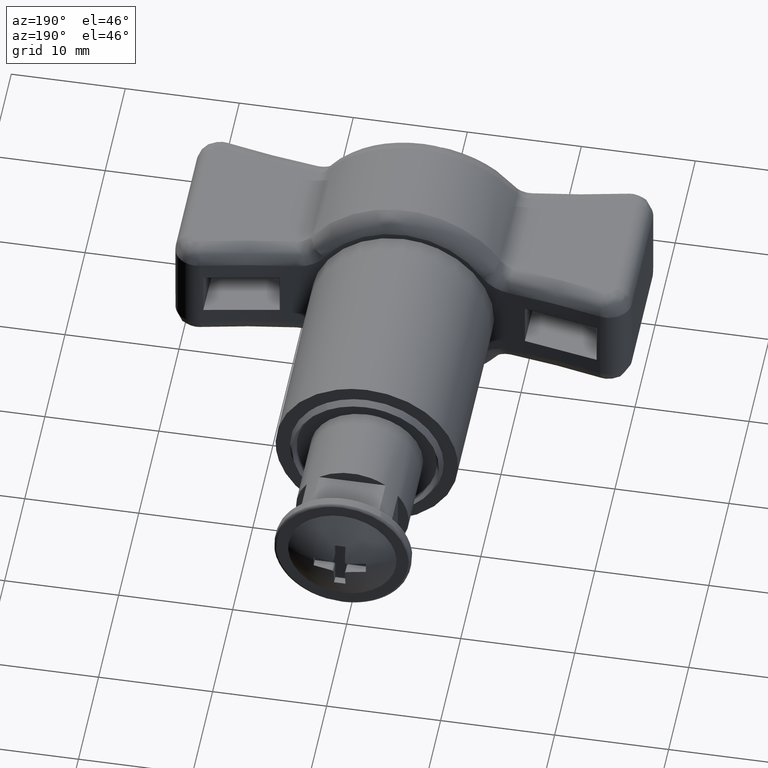
[diagram: clean part render]
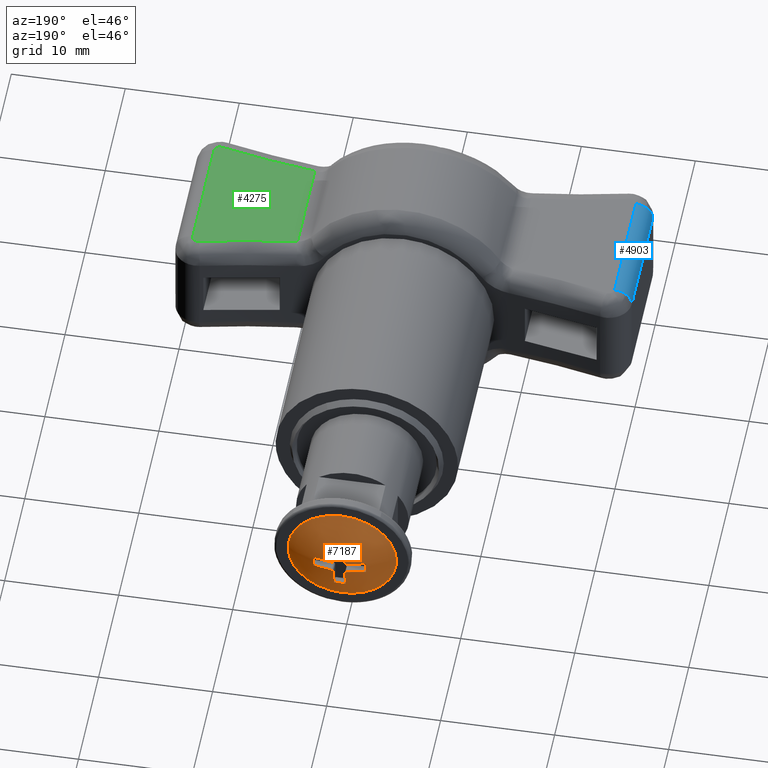
[diagram: same view with three faces highlighted in distinct colors, each labeled with its STEP entity id]
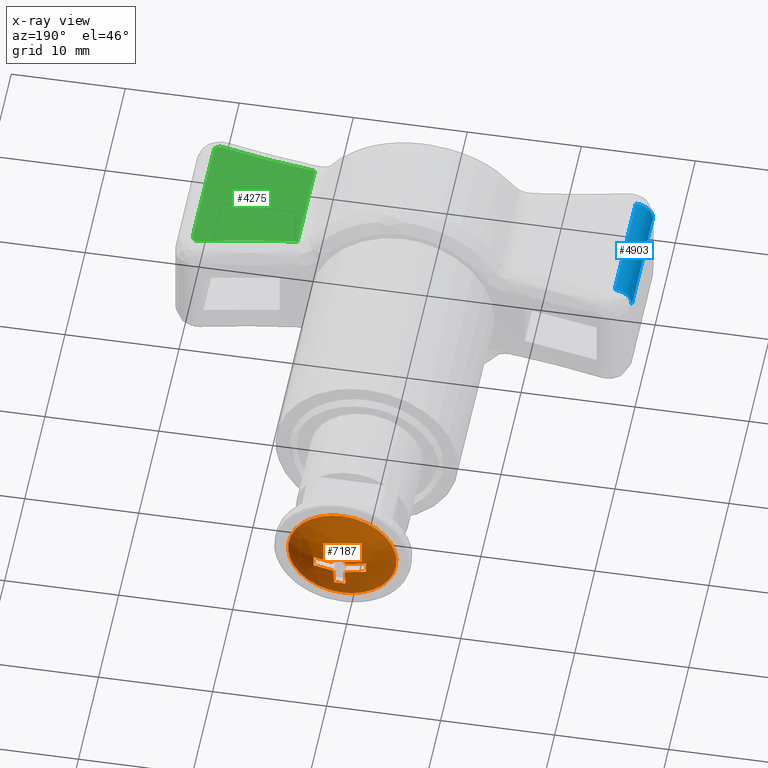
[diagram: x-ray of the same camera — body ghosted, the three highlighted faces saturated]
A machine part, auxiliary view with three faces highlighted in distinct colors.
The next image is the same camera in x-ray (body ghosted, the three faces saturated) — at least one of them is partly hidden behind the body in this view.
Their STEP definitions:

[orange] entity #7187 — the highlighted face is a freeform B-spline surface patch.
#6545=CARTESIAN_POINT('',(0.700000033248273,13.752729460377759,0.500000023748697));
#6546=VERTEX_POINT('',#6545);
#6553=CARTESIAN_POINT('',(0.500000023748669,13.752729460377781,0.700000033248202));
#6554=VERTEX_POINT('',#6553);
#6560=CARTESIAN_POINT('',(0.700000033248276,13.752729460377770,0.500000023748711));
#6561=CARTESIAN_POINT('',(0.686830942858193,13.753910770253819,0.500000023748704));
#6562=CARTESIAN_POINT('',(0.673868888772949,13.754957702888190,0.501288062437088));
#6563=CARTESIAN_POINT('',(0.648344118695220,13.756792687718560,0.506348411651787));
#6564=CARTESIAN_POINT('',(0.635647093504892,13.757587162926230,0.510183354941790));
#6565=CARTESIAN_POINT('',(0.611433165392601,13.758859691892800,0.520201306514288));
#6566=CARTESIAN_POINT('',(0.599939867830062,13.759339925445770,0.526336438224085));
#6567=CARTESIAN_POINT('',(0.578174275528631,13.759990112745660,0.540847384208796));
#6568=CARTESIAN_POINT('',(0.567867659941432,13.760156562081150,0.549296622284699));
#6569=CARTESIAN_POINT('',(0.540159759789836,13.760158423024111,0.576983757137313));
#6570=CARTESIAN_POINT('',(0.525240358267834,13.759494281438579,0.599314794766774));
#6571=CARTESIAN_POINT('',(0.505281538044795,13.756969967923350,0.647434180520137));
#6572=CARTESIAN_POINT('',(0.500000023748668,13.755092273826360,0.673659693164651));
#6573=CARTESIAN_POINT('',(0.500000023748668,13.752729460377781,0.700000033248202));
#6574=B_SPLINE_CURVE_WITH_KNOTS('',3,(#6560,#6561,#6562,#6563,#6564,#6565,#6566,#6567,#6568,#6569,#6570,#6571,#6572,#6573),.UNSPECIFIED.,.F.,.U.,(4,2,2,2,2,2,4),(0.0,0.125000000000000,0.250000000000000,0.375000000000000,0.500000000000000,0.750000000000000,1.0),.UNSPECIFIED.);
#6575=EDGE_CURVE('',#6546,#6554,#6574,.T.);
#6585=CARTESIAN_POINT('',(2.291615465318235,13.441433223569479,0.500000023748697));
#6586=VERTEX_POINT('',#6585);
#6587=CARTESIAN_POINT('',(0.700000033248275,13.752729460377781,0.500000023748697));
#6588=CARTESIAN_POINT('',(1.512003906024894,13.679890094416377,0.500000023748697));
#6589=CARTESIAN_POINT('',(2.291615465318238,13.441433223569490,0.500000023748697));
#6597=(BOUNDED_CURVE()B_SPLINE_CURVE(2,(#6587,#6588,#6589),.UNSPECIFIED.,.F.,.U.)CURVE()GEOMETRIC_REPRESENTATION_ITEM()QUASI_UNIFORM_CURVE()RATIONAL_B_SPLINE_CURVE((1.0,0.994629721954539,1.0))REPRESENTATION_ITEM(''));
#6598=EDGE_CURVE('',#6546,#6586,#6597,.T.);
#6624=CARTESIAN_POINT('',(2.291615465318785,13.441433223569501,-0.500000023748697));
#6625=VERTEX_POINT('',#6624);
#6626=CARTESIAN_POINT('',(2.291615465318233,13.441433223569490,0.500000023748697));
#6627=CARTESIAN_POINT('',(2.302798135219933,13.460258140103360,0.166666674582899));
#6628=CARTESIAN_POINT('',(2.302798135219932,13.460258140103360,-0.166666674582899));
#6629=CARTESIAN_POINT('',(2.291615465318785,13.441433223569501,-0.500000023748697));
#6630=QUASI_UNIFORM_CURVE('',3,(#6626,#6627,#6628,#6629),.UNSPECIFIED.,.F.,.U.);
#6631=EDGE_CURVE('',#6586,#6625,#6630,.T.);
#6648=CARTESIAN_POINT('',(0.700000033248159,13.752729460377781,-0.500000023748697));
#6649=VERTEX_POINT('',#6648);
#6650=CARTESIAN_POINT('',(2.291615465318785,13.441433223569501,-0.500000023748697));
#6651=CARTESIAN_POINT('',(1.512003906025101,13.679890094416375,-0.500000023748697));
#6652=CARTESIAN_POINT('',(0.700000033248159,13.752729460377790,-0.500000023748697));
#6660=(BOUNDED_CURVE()B_SPLINE_CURVE(2,(#6650,#6651,#6652),.UNSPECIFIED.,.F.,.U.)CURVE()GEOMETRIC_REPRESENTATION_ITEM()QUASI_UNIFORM_CURVE()RATIONAL_B_SPLINE_CURVE((1.0,0.994629721954535,1.0))REPRESENTATION_ITEM(''));
#6661=EDGE_CURVE('',#6625,#6649,#6660,.T.);
#6687=CARTESIAN_POINT('',(0.500000023748669,13.752729460377759,-0.700000033248301));
#6688=VERTEX_POINT('',#6687);
#6696=CARTESIAN_POINT('',(0.500000023748668,13.752729460377770,-0.700000033248302));
#6697=CARTESIAN_POINT('',(0.500000023748662,13.753910770253819,-0.686830942858220));
#6698=CARTESIAN_POINT('',(0.501288062437047,13.754957702888190,-0.673868888772976));
#6699=CARTESIAN_POINT('',(0.506348411651748,13.756792687718560,-0.648344118695249));
#6700=CARTESIAN_POINT('',(0.510183354941752,13.757587162926230,-0.635647093504921));
#6701=CARTESIAN_POINT('',(0.520201306514251,13.758859691892800,-0.611433165392633));
#6702=CARTESIAN_POINT('',(0.526336438224048,13.759339925445770,-0.599939867830094));
#6703=CARTESIAN_POINT('',(0.540847384208760,13.759990112745660,-0.578174275528665));
#6704=CARTESIAN_POINT('',(0.549296622284663,13.760156562081150,-0.567867659941467));
#6705=CARTESIAN_POINT('',(0.576983757137277,13.760158423024111,-0.540159759789874));
#6706=CARTESIAN_POINT('',(0.599314794766737,13.759494281438579,-0.525240358267873));
#6707=CARTESIAN_POINT('',(0.647434180520098,13.756969967923350,-0.505281538044837));
#6708=CARTESIAN_POINT('',(0.673659693164612,13.755092273826360,-0.500000023748711));
#6709=CARTESIAN_POINT('',(0.700000033248161,13.752729460377781,-0.500000023748711));
#6710=B_SPLINE_CURVE_WITH_KNOTS('',3,(#6696,#6697,#6698,#6699,#6700,#6701,#6702,#6703,#6704,#6705,#6706,#6707,#6708,#6709),.UNSPECIFIED.,.F.,.U.,(4,2,2,2,2,2,4),(0.0,0.125000000000000,0.250000000000000,0.375000000000000,0.500000000000000,0.750000000000000,1.0),.UNSPECIFIED.);
#6711=EDGE_CURVE('',#6688,#6649,#6710,.T.);
#6721=CARTESIAN_POINT('',(0.500000023748669,13.441433223569460,-2.291615465318270));
#6722=VERTEX_POINT('',#6721);
#6723=CARTESIAN_POINT('',(0.500000023748669,13.752729460377770,-0.700000033248302));
#6724=CARTESIAN_POINT('',(0.500000023748669,13.679890094416381,-1.512003906024923));
#6725=CARTESIAN_POINT('',(0.500000023748669,13.441433223569479,-2.291615465318274));
#6733=(BOUNDED_CURVE()B_SPLINE_CURVE(2,(#6723,#6724,#6725),.UNSPECIFIED.,.F.,.U.)CURVE()GEOMETRIC_REPRESENTATION_ITEM()QUASI_UNIFORM_CURVE()RATIONAL_B_SPLINE_CURVE((1.0,0.994629721954539,1.0))REPRESENTATION_ITEM(''));
#6734=EDGE_CURVE('',#6688,#6722,#6733,.T.);
#6760=CARTESIAN_POINT('',(-0.500000023748726,13.441433223569501,-2.291615465318800));
#6761=VERTEX_POINT('',#6760);
#6762=CARTESIAN_POINT('',(0.500000023748669,13.441433223569479,-2.291615465318257));
#6763=CARTESIAN_POINT('',(0.166666674582870,13.460258140103360,-2.302798135219955));
#6764=CARTESIAN_POINT('',(-0.166666674582928,13.460258140103360,-2.302798135219954));
#6765=CARTESIAN_POINT('',(-0.500000023748726,13.441433223569501,-2.291615465318800));
#6766=QUASI_UNIFORM_CURVE('',3,(#6762,#6763,#6764,#6765),.UNSPECIFIED.,.F.,.U.);
#6767=EDGE_CURVE('',#6722,#6761,#6766,.T.);
#6784=CARTESIAN_POINT('',(-0.500000023748726,13.752729460377759,-0.700000033248202));
#6785=VERTEX_POINT('',#6784);
#6786=CARTESIAN_POINT('',(-0.500000023748726,13.441433223569501,-2.291615465318800));
#6787=CARTESIAN_POINT('',(-0.500000023748726,13.679890094416361,-1.512003906025125));
#6788=CARTESIAN_POINT('',(-0.500000023748726,13.752729460377770,-0.700000033248204));
#6796=(BOUNDED_CURVE()B_SPLINE_CURVE(2,(#6786,#6787,#6788),.UNSPECIFIED.,.F.,.U.)CURVE()GEOMETRIC_REPRESENTATION_ITEM()QUASI_UNIFORM_CURVE()RATIONAL_B_SPLINE_CURVE((1.0,0.994629721954535,1.0))REPRESENTATION_ITEM(''));
#6797=EDGE_CURVE('',#6761,#6785,#6796,.T.);
#6823=CARTESIAN_POINT('',(-0.700000033248216,13.752729460377759,-0.500000023748697));
#6824=VERTEX_POINT('',#6823);
#6832=CARTESIAN_POINT('',(-0.700000033248220,13.752729460377781,-0.500000023748712));
#6833=CARTESIAN_POINT('',(-0.686830942858142,13.753910770253830,-0.500000023748712));
#6834=CARTESIAN_POINT('',(-0.673868888772903,13.754957702888190,-0.501288062437102));
#6835=CARTESIAN_POINT('',(-0.648344118695185,13.756792687718560,-0.506348411651813));
#6836=CARTESIAN_POINT('',(-0.635647093504864,13.757587162926230,-0.510183354941821));
#6837=CARTESIAN_POINT('',(-0.611433165392586,13.758859691892800,-0.520201306514326));
#6838=CARTESIAN_POINT('',(-0.599939867830053,13.759339925445770,-0.526336438224124));
#6839=CARTESIAN_POINT('',(-0.578174275528636,13.759990112745660,-0.540847384208838));
#6840=CARTESIAN_POINT('',(-0.567867659941443,13.760156562081150,-0.549296622284741));
#6841=CARTESIAN_POINT('',(-0.540159759789865,13.760158423024100,-0.576983757137354));
#6842=CARTESIAN_POINT('',(-0.525240358267873,13.759494281438570,-0.599314794766809));
#6843=CARTESIAN_POINT('',(-0.505281538044849,13.756969967923339,-0.647434180520157));
#6844=CARTESIAN_POINT('',(-0.500000023748726,13.755092273826360,-0.673659693164662));
#6845=CARTESIAN_POINT('',(-0.500000023748727,13.752729460377781,-0.700000033248204));
#6846=B_SPLINE_CURVE_WITH_KNOTS('',3,(#6832,#6833,#6834,#6835,#6836,#6837,#6838,#6839,#6840,#6841,#6842,#6843,#6844,#6845),.UNSPECIFIED.,.F.,.U.,(4,2,2,2,2,2,4),(0.0,0.125000000000000,0.250000000000000,0.375000000000000,0.500000000000000,0.750000000000000,1.0),.UNSPECIFIED.);
#6847=EDGE_CURVE('',#6824,#6785,#6846,.T.);
#6857=CARTESIAN_POINT('',(-2.291615465318295,13.441433223569460,-0.500000023748697));
#6858=VERTEX_POINT('',#6857);
#6859=CARTESIAN_POINT('',(-0.700000033248217,13.752729460377781,-0.500000023748697));
#6860=CARTESIAN_POINT('',(-1.512003906024898,13.679890094416388,-0.500000023748697));
#6861=CARTESIAN_POINT('',(-2.291615465318298,13.441433223569470,-0.500000023748697));
#6869=(BOUNDED_CURVE()B_SPLINE_CURVE(2,(#6859,#6860,#6861),.UNSPECIFIED.,.F.,.U.)CURVE()GEOMETRIC_REPRESENTATION_ITEM()QUASI_UNIFORM_CURVE()RATIONAL_B_SPLINE_CURVE((1.0,0.994629721954539,1.0))REPRESENTATION_ITEM(''));
#6870=EDGE_CURVE('',#6824,#6858,#6869,.T.);
#6896=CARTESIAN_POINT('',(-2.291615465318730,13.441433223569501,0.500000023748697));
#6897=VERTEX_POINT('',#6896);
#6898=CARTESIAN_POINT('',(-2.291615465318294,13.441433223569470,-0.500000023748697));
#6899=CARTESIAN_POINT('',(-2.302798135219994,13.460258140103351,-0.166666674582899));
#6900=CARTESIAN_POINT('',(-2.302798135219994,13.460258140103351,0.166666674582899));
#6901=CARTESIAN_POINT('',(-2.291615465318730,13.441433223569501,0.500000023748697));
#6902=QUASI_UNIFORM_CURVE('',3,(#6898,#6899,#6900,#6901),.UNSPECIFIED.,.F.,.U.);
#6903=EDGE_CURVE('',#6858,#6897,#6902,.T.);
#6920=CARTESIAN_POINT('',(-0.700000033248256,13.752729460377759,0.500000023748697));
#6921=VERTEX_POINT('',#6920);
#6922=CARTESIAN_POINT('',(-2.291615465318730,13.441433223569501,0.500000023748697));
#6923=CARTESIAN_POINT('',(-1.512003906025122,13.679890094416363,0.500000023748697));
#6924=CARTESIAN_POINT('',(-0.700000033248258,13.752729460377781,0.500000023748697));
#6932=(BOUNDED_CURVE()B_SPLINE_CURVE(2,(#6922,#6923,#6924),.UNSPECIFIED.,.F.,.U.)CURVE()GEOMETRIC_REPRESENTATION_ITEM()QUASI_UNIFORM_CURVE()RATIONAL_B_SPLINE_CURVE((1.0,0.994629721954536,1.0))REPRESENTATION_ITEM(''));
#6933=EDGE_CURVE('',#6897,#6921,#6932,.T.);
#6959=CARTESIAN_POINT('',(-0.500000023748726,13.752729460377759,0.700000033248301));
#6960=VERTEX_POINT('',#6959);
#6968=CARTESIAN_POINT('',(-0.500000023748726,13.752729460377770,0.700000033248302));
#6969=CARTESIAN_POINT('',(-0.500000023748719,13.753910770253819,0.686830942858218));
#6970=CARTESIAN_POINT('',(-0.501288062437104,13.754957702888190,0.673868888772973));
#6971=CARTESIAN_POINT('',(-0.506348411651807,13.756792687718550,0.648344118695242));
#6972=CARTESIAN_POINT('',(-0.510183354941812,13.757587162926230,0.635647093504913));
#6973=CARTESIAN_POINT('',(-0.520201306514314,13.758859691892800,0.611433165392622));
#6974=CARTESIAN_POINT('',(-0.526336438224112,13.759339925445770,0.599939867830082));
#6975=CARTESIAN_POINT('',(-0.540847384208827,13.759990112745660,0.578174275528652));
#6976=CARTESIAN_POINT('',(-0.549296622284732,13.760156562081150,0.567867659941453));
#6977=CARTESIAN_POINT('',(-0.576983757137353,13.760158423024111,0.540159759789859));
#6978=CARTESIAN_POINT('',(-0.599314794766818,13.759494281438570,0.525240358267859));
#6979=CARTESIAN_POINT('',(-0.647434180520188,13.756969967923350,0.505281538044828));
#6980=CARTESIAN_POINT('',(-0.673659693164706,13.755092273826349,0.500000023748706));
#6981=CARTESIAN_POINT('',(-0.700000033248259,13.752729460377770,0.500000023748711));
#6982=B_SPLINE_CURVE_WITH_KNOTS('',3,(#6968,#6969,#6970,#6971,#6972,#6973,#6974,#6975,#6976,#6977,#6978,#6979,#6980,#6981),.UNSPECIFIED.,.F.,.U.,(4,2,2,2,2,2,4),(0.0,0.125000000000000,0.250000000000000,0.375000000000000,0.499999999999999,0.750000000000000,1.0),.UNSPECIFIED.);
#6983=EDGE_CURVE('',#6960,#6921,#6982,.T.);
#6993=CARTESIAN_POINT('',(-0.500000023748726,13.441433223569460,2.291615465318270));
#6994=VERTEX_POINT('',#6993);
#6995=CARTESIAN_POINT('',(-0.500000023748726,13.752729460377759,0.700000033248301));
#6996=CARTESIAN_POINT('',(-0.500000023748726,13.679890094416372,1.512003906024923));
#6997=CARTESIAN_POINT('',(-0.500000023748726,13.441433223569470,2.291615465318271));
#7005=(BOUNDED_CURVE()B_SPLINE_CURVE(2,(#6995,#6996,#6997),.UNSPECIFIED.,.F.,.U.)CURVE()GEOMETRIC_REPRESENTATION_ITEM()QUASI_UNIFORM_CURVE()RATIONAL_B_SPLINE_CURVE((1.0,0.994629721954539,1.0))REPRESENTATION_ITEM(''));
#7006=EDGE_CURVE('',#6960,#6994,#7005,.T.);
#7032=CARTESIAN_POINT('',(0.500000023748671,13.441433223569501,2.291615465318270));
#7033=VERTEX_POINT('',#7032);
#7034=CARTESIAN_POINT('',(-0.500000023748726,13.441433223569479,2.291615465318252));
#7035=CARTESIAN_POINT('',(-0.166666674582927,13.460258140103360,2.302798135219954));
#7036=CARTESIAN_POINT('',(0.166666674582872,13.460258140103360,2.302798135219955));
#7037=CARTESIAN_POINT('',(0.500000023748671,13.441433223569479,2.291615465318257));
#7038=QUASI_UNIFORM_CURVE('',3,(#7034,#7035,#7036,#7037),.UNSPECIFIED.,.F.,.U.);
#7039=EDGE_CURVE('',#6994,#7033,#7038,.T.);
#7056=CARTESIAN_POINT('',(0.500000023748669,13.441433223569479,2.291615465318264));
#7057=CARTESIAN_POINT('',(0.500000023748669,13.679890094416388,1.512003906024871));
#7058=CARTESIAN_POINT('',(0.500000023748669,13.752729460377781,0.700000033248203));
#7066=(BOUNDED_CURVE()B_SPLINE_CURVE(2,(#7056,#7057,#7058),.UNSPECIFIED.,.F.,.U.)CURVE()GEOMETRIC_REPRESENTATION_ITEM()QUASI_UNIFORM_CURVE()RATIONAL_B_SPLINE_CURVE((1.0,0.994629721954539,1.0))REPRESENTATION_ITEM(''));
#7067=EDGE_CURVE('',#7033,#6554,#7066,.T.);
#7104=CARTESIAN_POINT('',(0.0,12.200000761239240,-4.750000237411020));
#7105=VERTEX_POINT('',#7104);
#7106=CARTESIAN_POINT('',(0.0,12.200000761239240,4.750000237411020));
#7107=VERTEX_POINT('',#7106);
#7108=CARTESIAN_POINT('',(0.0,12.200000761239240,-4.750000237411020));
#7109=CARTESIAN_POINT('',(4.750000237411020,12.200000761239240,-4.750000237411020));
#7110=CARTESIAN_POINT('',(4.750000237411020,12.200000761239240,0.0));
#7111=CARTESIAN_POINT('',(4.750000237411020,12.200000761239240,4.750000237411020));
#7112=CARTESIAN_POINT('',(0.0,12.200000761239240,4.750000237411020));
#7120=(BOUNDED_CURVE()B_SPLINE_CURVE(2,(#7108,#7109,#7110,#7111,#7112),.UNSPECIFIED.,.F.,.U.)B_SPLINE_CURVE_WITH_KNOTS((3,2,3),(0.0,0.250000000000000,0.500000000000000),.UNSPECIFIED.)CURVE()GEOMETRIC_REPRESENTATION_ITEM()RATIONAL_B_SPLINE_CURVE((1.0,0.707106781186548,1.0,0.707106781186548,1.0))REPRESENTATION_ITEM(''));
#7121=EDGE_CURVE('',#7105,#7107,#7120,.T.);
#7123=CARTESIAN_POINT('',(0.0,12.200000761239240,4.750000237411020));
#7124=CARTESIAN_POINT('',(-4.750000237411020,12.200000761239240,4.750000237411020));
#7125=CARTESIAN_POINT('',(-4.750000237411020,12.200000761239240,0.0));
#7126=CARTESIAN_POINT('',(-4.750000237411020,12.200000761239240,-4.750000237411020));
#7127=CARTESIAN_POINT('',(0.0,12.200000761239240,-4.750000237411020));
#7135=(BOUNDED_CURVE()B_SPLINE_CURVE(2,(#7123,#7124,#7125,#7126,#7127),.UNSPECIFIED.,.F.,.U.)B_SPLINE_CURVE_WITH_KNOTS((3,2,3),(0.500000000000000,0.750000000000000,1.0),.UNSPECIFIED.)CURVE()GEOMETRIC_REPRESENTATION_ITEM()RATIONAL_B_SPLINE_CURVE((1.0,0.707106781186548,1.0,0.707106781186548,1.0))REPRESENTATION_ITEM(''));
#7136=EDGE_CURVE('',#7107,#7105,#7135,.T.);
#7141=CARTESIAN_POINT('',(-4.564282734489837,10.417934735580031,4.564282734489833));
#7142=CARTESIAN_POINT('',(-2.557589650531603,11.904864680210308,5.115179301063198));
#7143=CARTESIAN_POINT('',(2.557589735141092,11.904864680210308,5.115179301063198));
#7144=CARTESIAN_POINT('',(4.564282852960506,10.417934647795017,4.564282701966133));
#7145=CARTESIAN_POINT('',(-5.115179301063202,11.904864680210308,2.557589650531599));
#7146=CARTESIAN_POINT('',(-2.908656629444550,13.800000846200660,2.908656629444544));
#7147=CARTESIAN_POINT('',(2.908656725667940,13.800000846200660,2.908656629444544));
#7148=CARTESIAN_POINT('',(5.115179429433638,11.904864569955629,2.557589630107325));
#7149=CARTESIAN_POINT('',(-5.115179301063202,11.904864680210308,-2.557589735141095));
#7150=CARTESIAN_POINT('',(-2.908656629444550,13.800000846200660,-2.908656725667945));
#7151=CARTESIAN_POINT('',(2.908656725667940,13.800000846200660,-2.908656725667945));
#7152=CARTESIAN_POINT('',(5.115179429433638,11.904864569955629,-2.557589714716821));
#7153=CARTESIAN_POINT('',(-4.564282701966137,10.417934647795009,-4.564282852960510));
#7154=CARTESIAN_POINT('',(-2.557589630107330,11.904864569955620,-5.115179429433641));
#7155=CARTESIAN_POINT('',(2.557589714716818,11.904864569955629,-5.115179429433641));
#7156=CARTESIAN_POINT('',(4.564282820436802,10.417934560009988,-4.564282820436804));
#7164=(BOUNDED_SURFACE()B_SPLINE_SURFACE(2,2,((#7141,#7145,#7149,#7153),(#7142,#7146,#7150,#7154),(#7143,#7147,#7151,#7155),(#7144,#7148,#7152,#7156)),.UNSPECIFIED.,.F.,.F.,.U.)B_SPLINE_SURFACE_WITH_KNOTS((3,1,3),(3,1,3),(0.0,5.443699175917818,10.887398531922630),(0.0,5.443699175917820,10.887398531922640),.UNSPECIFIED.)GEOMETRIC_REPRESENTATION_ITEM()RATIONAL_B_SPLINE_SURFACE(((1.274529558594339,1.137264779297170,1.137264779297170,1.274529567676252),(1.137264779297170,1.0,1.0,1.137264788379083),(1.137264779297170,1.0,1.0,1.137264788379083),(1.274529567676252,1.137264788379083,1.137264788379083,1.274529576758166)))REPRESENTATION_ITEM('')SURFACE());
#7165=ORIENTED_EDGE('',*,*,#7136,.F.);
#7166=ORIENTED_EDGE('',*,*,#7121,.F.);
#7167=EDGE_LOOP('',(#7165,#7166));
#7168=FACE_OUTER_BOUND('',#7167,.T.);
#7169=ORIENTED_EDGE('',*,*,#7067,.F.);
#7170=ORIENTED_EDGE('',*,*,#7039,.F.);
#7171=ORIENTED_EDGE('',*,*,#7006,.F.);
#7172=ORIENTED_EDGE('',*,*,#6983,.T.);
#7173=ORIENTED_EDGE('',*,*,#6933,.F.);
#7174=ORIENTED_EDGE('',*,*,#6903,.F.);
#7175=ORIENTED_EDGE('',*,*,#6870,.F.);
#7176=ORIENTED_EDGE('',*,*,#6847,.T.);
#7177=ORIENTED_EDGE('',*,*,#6797,.F.);
#7178=ORIENTED_EDGE('',*,*,#6767,.F.);
#7179=ORIENTED_EDGE('',*,*,#6734,.F.);
#7180=ORIENTED_EDGE('',*,*,#6711,.T.);
#7181=ORIENTED_EDGE('',*,*,#6661,.F.);
#7182=ORIENTED_EDGE('',*,*,#6631,.F.);
#7183=ORIENTED_EDGE('',*,*,#6598,.F.);
#7184=ORIENTED_EDGE('',*,*,#6575,.T.);
#7185=EDGE_LOOP('',(#7169,#7170,#7171,#7172,#7173,#7174,#7175,#7176,#7177,#7178,#7179,#7180,#7181,#7182,#7183,#7184));
#7186=FACE_BOUND('',#7185,.T.);
#7187=ADVANCED_FACE('',(#7168,#7186),#7164,.T.);

[blue] entity #4903 — the highlighted face is a freeform B-spline surface patch.
#2538=CARTESIAN_POINT('',(-20.000000949949001,-18.400666906940302,3.500000237479540));
#2539=VERTEX_POINT('',#2538);
#3843=CARTESIAN_POINT('',(-20.000000949949001,-28.900001491419150,3.500000237479495));
#3844=VERTEX_POINT('',#3843);
#3850=CARTESIAN_POINT('',(-20.000000949949001,-28.900001491419150,3.500000237479495));
#3851=CARTESIAN_POINT('',(-20.000000949949001,-18.400666906940302,3.500000237479540));
#3852=QUASI_UNIFORM_CURVE('',1,(#3850,#3851),.UNSPECIFIED.,.F.,.U.);
#3853=EDGE_CURVE('',#3844,#2539,#3852,.T.);
#3891=CARTESIAN_POINT('',(-18.500000949949001,-18.400666906940302,5.000000237479500));
#3892=VERTEX_POINT('',#3891);
#3893=CARTESIAN_POINT('',(-20.000000949949001,-18.400666906940302,3.500000237479495));
#3894=CARTESIAN_POINT('',(-20.000000949948998,-18.400666906940298,5.000000237479497));
#3895=CARTESIAN_POINT('',(-18.500000949949001,-18.400666906940302,5.000000237479496));
#3903=(BOUNDED_CURVE()B_SPLINE_CURVE(2,(#3893,#3894,#3895),.UNSPECIFIED.,.F.,.U.)CURVE()GEOMETRIC_REPRESENTATION_ITEM()QUASI_UNIFORM_CURVE()RATIONAL_B_SPLINE_CURVE((1.0,0.707106781186548,1.0))REPRESENTATION_ITEM(''));
#3904=EDGE_CURVE('',#2539,#3892,#3903,.T.);
#3931=CARTESIAN_POINT('',(-18.500000949949001,-28.900001491419150,5.000000237479500));
#3932=VERTEX_POINT('',#3931);
#3972=CARTESIAN_POINT('',(-18.500000949949001,-18.400666906940302,5.000000237479500));
#3973=CARTESIAN_POINT('',(-18.500000949949001,-28.900001491419150,5.000000237479500));
#3974=QUASI_UNIFORM_CURVE('',1,(#3972,#3973),.UNSPECIFIED.,.F.,.U.);
#3975=EDGE_CURVE('',#3892,#3932,#3974,.T.);
#4871=CARTESIAN_POINT('',(-19.999943834545260,-18.138183542328331,3.486910434231935));
#4872=CARTESIAN_POINT('',(-19.999943834545260,-29.169046940146419,3.486910434231935));
#4873=CARTESIAN_POINT('',(-20.013980929968323,-18.138183542328335,5.095402250497117));
#4874=CARTESIAN_POINT('',(-20.013980929968323,-29.169046940146423,5.095402250497117));
#4875=CARTESIAN_POINT('',(-18.408428140646720,-18.138183542328331,4.997202435112293));
#4876=CARTESIAN_POINT('',(-18.408428140646720,-29.169046940146419,4.997202435112293));
#4884=(BOUNDED_SURFACE()B_SPLINE_SURFACE(1,2,((#4871,#4873,#4875),(#4872,#4874,#4876)),.UNSPECIFIED.,.F.,.F.,.U.)B_SPLINE_SURFACE_WITH_KNOTS((2,2),(3,3),(0.0,11.030863397818100),(0.0,2.608874249765592),.UNSPECIFIED.)GEOMETRIC_REPRESENTATION_ITEM()RATIONAL_B_SPLINE_SURFACE(((1.0,0.681998360062499,1.0),(1.0,0.681998360062499,1.0)))REPRESENTATION_ITEM('')SURFACE());
#4885=CARTESIAN_POINT('',(-20.000000949949001,-28.900001491419150,3.500000237479540));
#4886=CARTESIAN_POINT('',(-20.000000949948998,-28.900001491419150,5.000000237479540));
#4887=CARTESIAN_POINT('',(-18.500000949949001,-28.900001491419150,5.000000237479540));
#4895=(BOUNDED_CURVE()B_SPLINE_CURVE(2,(#4885,#4886,#4887),.UNSPECIFIED.,.F.,.U.)CURVE()GEOMETRIC_REPRESENTATION_ITEM()QUASI_UNIFORM_CURVE()RATIONAL_B_SPLINE_CURVE((1.0,0.707106781186548,1.0))REPRESENTATION_ITEM(''));
#4896=EDGE_CURVE('',#3844,#3932,#4895,.T.);
#4897=ORIENTED_EDGE('',*,*,#4896,.T.);
#4898=ORIENTED_EDGE('',*,*,#3975,.F.);
#4899=ORIENTED_EDGE('',*,*,#3904,.F.);
#4900=ORIENTED_EDGE('',*,*,#3853,.F.);
#4901=EDGE_LOOP('',(#4897,#4898,#4899,#4900));
#4902=FACE_OUTER_BOUND('',#4901,.T.);
#4903=ADVANCED_FACE('',(#4902),#4884,.T.);

[green] entity #4275 — the highlighted face is a freeform B-spline surface patch.
#3070=CARTESIAN_POINT('',(9.486832817793371,-19.346636704832498,5.000000237479901));
#3071=VERTEX_POINT('',#3070);
#3124=CARTESIAN_POINT('',(17.890244851681651,-17.912862029050501,5.000000237479901));
#3125=VERTEX_POINT('',#3124);
#3143=CARTESIAN_POINT('',(17.890244851681651,-17.912862029050501,5.000000237479901));
#3144=CARTESIAN_POINT('',(13.726083196588883,-18.849798407781666,5.000000237479901));
#3145=CARTESIAN_POINT('',(9.486832817793381,-19.346636704832491,5.000000237479901));
#3153=(BOUNDED_CURVE()B_SPLINE_CURVE(2,(#3143,#3144,#3145),.UNSPECIFIED.,.F.,.U.)CURVE()GEOMETRIC_REPRESENTATION_ITEM()QUASI_UNIFORM_CURVE()RATIONAL_B_SPLINE_CURVE((1.0,0.998631435135119,1.0))REPRESENTATION_ITEM(''));
#3154=EDGE_CURVE('',#3125,#3071,#3153,.T.);
#4120=CARTESIAN_POINT('',(9.486832817793371,-27.954031693526851,5.000000237479901));
#4121=VERTEX_POINT('',#4120);
#4122=CARTESIAN_POINT('',(9.486832817793371,-19.346636704832498,5.000000237479901));
#4123=CARTESIAN_POINT('',(9.486832817793371,-27.954031693526851,5.000000237479901));
#4124=QUASI_UNIFORM_CURVE('',1,(#4122,#4123),.UNSPECIFIED.,.F.,.U.);
#4125=EDGE_CURVE('',#3071,#4121,#4124,.T.);
#4193=CARTESIAN_POINT('',(18.500000949949001,-18.400666906940351,5.000000237479901));
#4194=VERTEX_POINT('',#4193);
#4210=CARTESIAN_POINT('',(18.500000949949001,-18.400666906940351,5.000000237479901));
#4211=CARTESIAN_POINT('',(18.500000949948994,-18.160354482974242,5.000000237479901));
#4212=CARTESIAN_POINT('',(18.312348473443532,-18.010232501992689,5.000000237479901));
#4213=CARTESIAN_POINT('',(18.124695996938051,-17.860110521011130,5.000000237479901));
#4214=CARTESIAN_POINT('',(17.890244851681651,-17.912862029050508,5.000000237479901));
#4222=(BOUNDED_CURVE()B_SPLINE_CURVE(2,(#4210,#4211,#4212,#4213,#4214),.UNSPECIFIED.,.F.,.U.)B_SPLINE_CURVE_WITH_KNOTS((3,2,3),(0.0,0.500000000000000,1.0),.UNSPECIFIED.)CURVE()GEOMETRIC_REPRESENTATION_ITEM()RATIONAL_B_SPLINE_CURVE((1.0,0.901303236150035,1.0,0.901303236150035,1.0))REPRESENTATION_ITEM(''));
#4223=EDGE_CURVE('',#4194,#3125,#4222,.T.);
#4228=CARTESIAN_POINT('',(18.950207749979999,-29.974307275936749,5.000000237479901));
#4229=CARTESIAN_POINT('',(9.036624889586337,-29.974307275936749,5.000000237479901));
#4230=CARTESIAN_POINT('',(18.950207749979999,-17.326361702319769,5.000000237479901));
#4231=CARTESIAN_POINT('',(9.036624889586337,-17.326361702319769,5.000000237479901));
#4232=B_SPLINE_SURFACE_WITH_KNOTS('',1,1,((#4228,#4230),(#4229,#4231)),.UNSPECIFIED.,.F.,.F.,.U.,(2,2),(2,2),(0.0,9.913582860393658),(0.0,12.647945573616990),.UNSPECIFIED.);
#4233=ORIENTED_EDGE('',*,*,#4223,.T.);
#4234=ORIENTED_EDGE('',*,*,#3154,.T.);
#4235=ORIENTED_EDGE('',*,*,#4125,.T.);
#4236=CARTESIAN_POINT('',(17.890244851681651,-29.387806369308951,5.000000237479901));
#4237=VERTEX_POINT('',#4236);
#4238=CARTESIAN_POINT('',(9.486832817793378,-27.954031693526801,5.000000237479901));
#4239=CARTESIAN_POINT('',(13.726083196588945,-28.450869990577619,5.000000237479901));
#4240=CARTESIAN_POINT('',(17.890244851681668,-29.387806369308851,5.000000237479901));
#4248=(BOUNDED_CURVE()B_SPLINE_CURVE(2,(#4238,#4239,#4240),.UNSPECIFIED.,.F.,.U.)CURVE()GEOMETRIC_REPRESENTATION_ITEM()QUASI_UNIFORM_CURVE()RATIONAL_B_SPLINE_CURVE((1.0,0.998631435135119,1.0))REPRESENTATION_ITEM(''));
#4249=EDGE_CURVE('',#4121,#4237,#4248,.T.);
#4250=ORIENTED_EDGE('',*,*,#4249,.T.);
#4251=CARTESIAN_POINT('',(18.500000949949001,-28.900001491419150,5.000000237479901));
#4252=VERTEX_POINT('',#4251);
#4253=CARTESIAN_POINT('',(17.890244851681651,-29.387806369308951,5.000000237479901));
#4254=CARTESIAN_POINT('',(18.124695996938033,-29.440557877348322,5.000000237479901));
#4255=CARTESIAN_POINT('',(18.312348473443510,-29.290435896366780,5.000000237479901));
#4256=CARTESIAN_POINT('',(18.500000949949005,-29.140313915385224,5.000000237479901));
#4257=CARTESIAN_POINT('',(18.500000949949001,-28.900001491419101,5.000000237479901));
#4265=(BOUNDED_CURVE()B_SPLINE_CURVE(2,(#4253,#4254,#4255,#4256,#4257),.UNSPECIFIED.,.F.,.U.)B_SPLINE_CURVE_WITH_KNOTS((3,2,3),(0.0,0.500000000000000,1.0),.UNSPECIFIED.)CURVE()GEOMETRIC_REPRESENTATION_ITEM()RATIONAL_B_SPLINE_CURVE((1.0,0.901303236150045,1.0,0.901303236150045,1.0))REPRESENTATION_ITEM(''));
#4266=EDGE_CURVE('',#4237,#4252,#4265,.T.);
#4267=ORIENTED_EDGE('',*,*,#4266,.T.);
#4268=CARTESIAN_POINT('',(18.500000949949001,-28.900001491419150,5.000000237479901));
#4269=CARTESIAN_POINT('',(18.500000949949001,-18.400666906940351,5.000000237479901));
#4270=QUASI_UNIFORM_CURVE('',1,(#4268,#4269),.UNSPECIFIED.,.F.,.U.);
#4271=EDGE_CURVE('',#4252,#4194,#4270,.T.);
#4272=ORIENTED_EDGE('',*,*,#4271,.T.);
#4273=EDGE_LOOP('',(#4233,#4234,#4235,#4250,#4267,#4272));
#4274=FACE_OUTER_BOUND('',#4273,.T.);
#4275=ADVANCED_FACE('',(#4274),#4232,.F.);